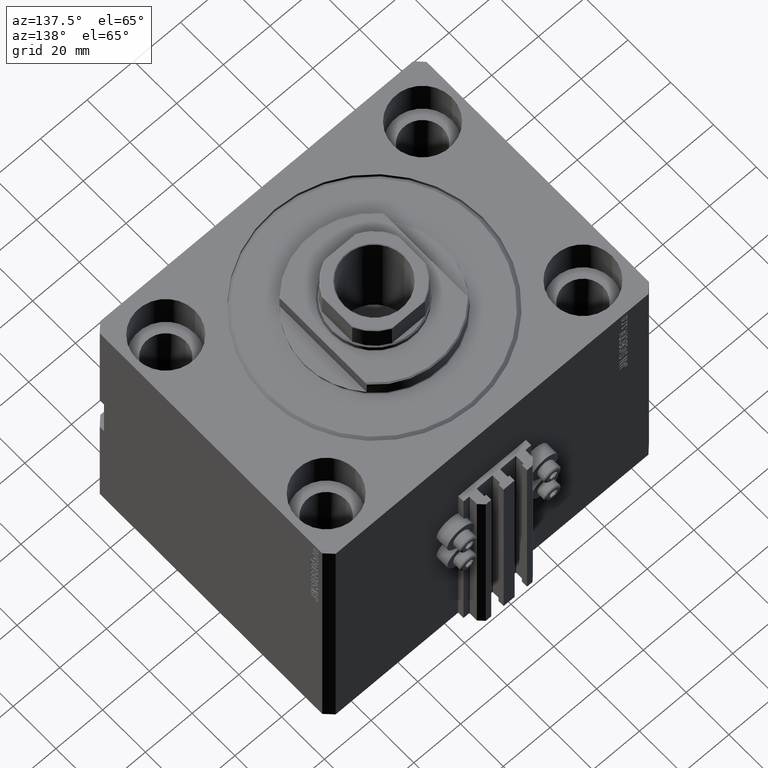
[diagram: clean part render]
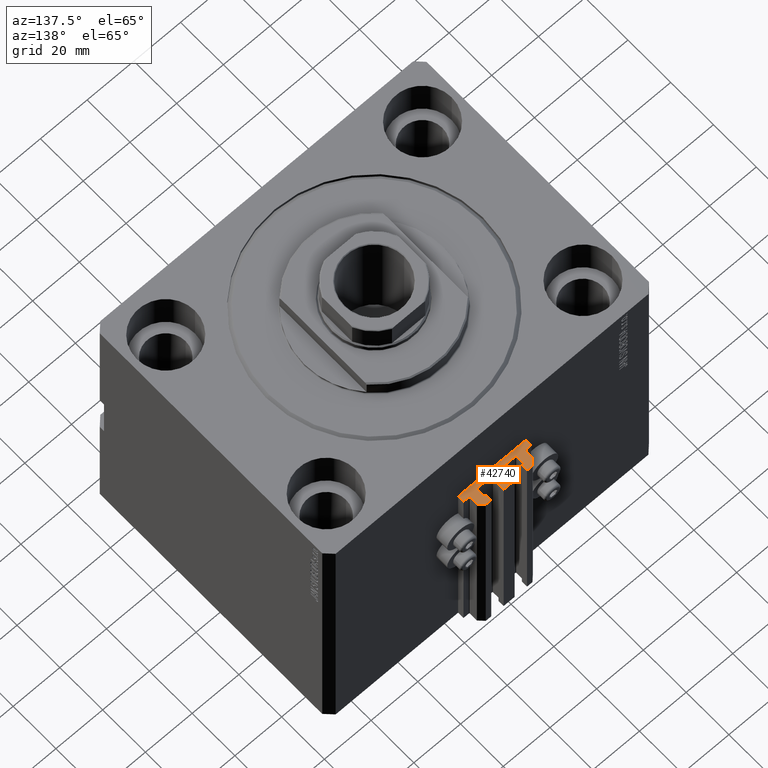
[diagram: same view with one face highlighted and labeled with its STEP entity id]
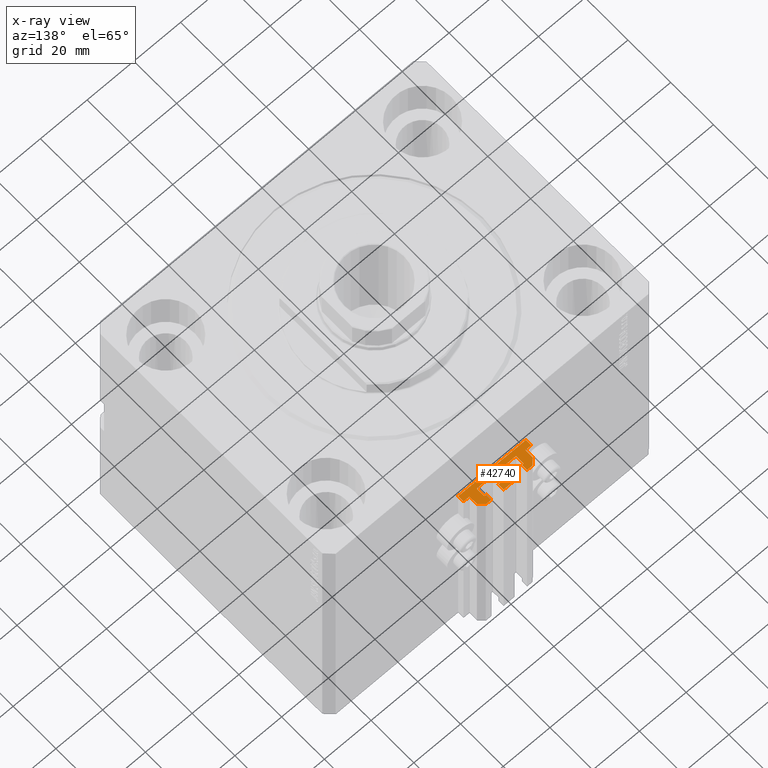
[diagram: x-ray of the same camera — body ghosted, the highlighted face saturated]
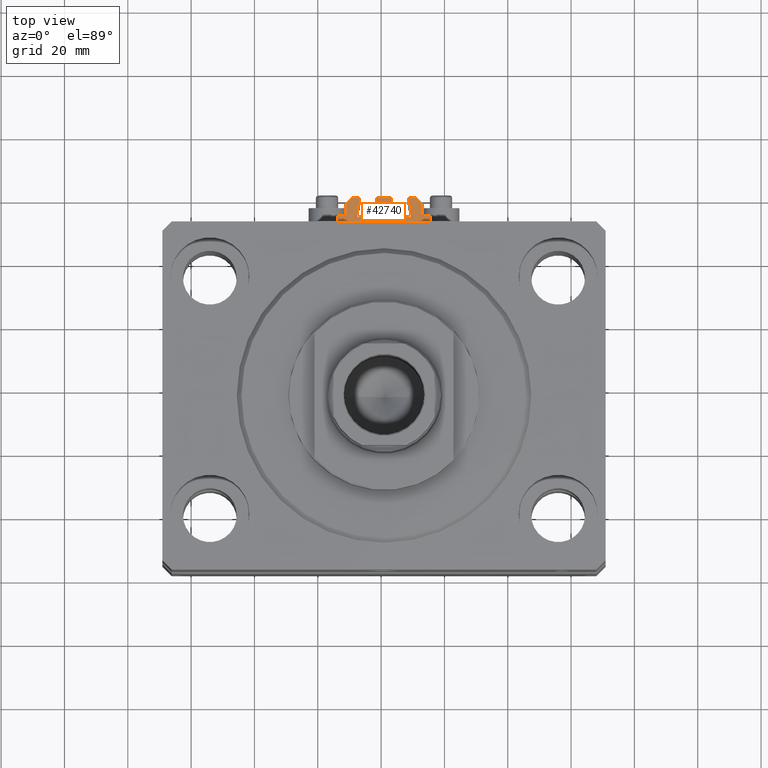
[diagram: same view with one face highlighted and labeled with its STEP entity id]
A machine part, auxiliary view. The second image highlights one B-rep face of the part: STEP entity #42740.
The next image is the same camera in x-ray: the body ghosted, the highlighted face saturated — about 0% of this face is hidden behind the body in this view.
A second angle (top view) of the same face is appended — the face is thin or edge-on in the first view.
In plain terms, the highlighted planar face has unit normal (0, 0, 1).
Its self-contained STEP definition (entity closure, byte-faithful):
#306 = ORIENTED_EDGE ( 'NONE', *, *, #20345, .F. ) ;
#373 = DIRECTION ( 'NONE',  ( 0.000000000000000000, 0.000000000000000000, 1.000000000000000000 ) ) ;
#517 = AXIS2_PLACEMENT_3D ( 'NONE', #47622, #28398, #32096 ) ;
#944 = VERTEX_POINT ( 'NONE', #33586 ) ;
#1222 = DIRECTION ( 'NONE',  ( -1.000000000000000000, 0.000000000000000000, 0.000000000000000000 ) ) ;
#1399 = CIRCLE ( 'NONE', #14016, 0.2000000000000033418 ) ;
#1405 = DIRECTION ( 'NONE',  ( -5.256737805990328981E-16, 1.000000000000000000, 0.000000000000000000 ) ) ;
#1695 = DIRECTION ( 'NONE',  ( 1.000000000000000000, 0.000000000000000000, 0.000000000000000000 ) ) ;
#1826 = DIRECTION ( 'NONE',  ( 1.000000000000000000, 0.000000000000000000, 0.000000000000000000 ) ) ;
#2064 = CARTESIAN_POINT ( 'NONE',  ( -14.50000000000000000, 55.00000000000000711, -33.00000000000000000 ) ) ;
#2286 = EDGE_CURVE ( 'NONE', #36978, #2469, #24624, .T. ) ;
#2335 = ORIENTED_EDGE ( 'NONE', *, *, #17791, .F. ) ;
#2400 = ORIENTED_EDGE ( 'NONE', *, *, #3226, .T. ) ;
#2469 = VERTEX_POINT ( 'NONE', #41845 ) ;
#2581 = VECTOR ( 'NONE', #39987, 1000.000000000000114 ) ;
#2616 = CARTESIAN_POINT ( 'NONE',  ( 12.20000000000000107, 57.50000000000002132, -33.00000000000000000 ) ) ;
#2972 = VERTEX_POINT ( 'NONE', #33118 ) ;
#2979 = EDGE_CURVE ( 'NONE', #33001, #27613, #29167, .T. ) ;
#2999 = VECTOR ( 'NONE', #39810, 1000.000000000000000 ) ;
#3039 = LINE ( 'NONE', #17864, #6951 ) ;
#3226 = EDGE_CURVE ( 'NONE', #4035, #15142, #28339, .T. ) ;
#3258 = ORIENTED_EDGE ( 'NONE', *, *, #8987, .F. ) ;
#3369 = LINE ( 'NONE', #45535, #12912 ) ;
#3424 = LINE ( 'NONE', #11312, #19653 ) ;
#3440 = DIRECTION ( 'NONE',  ( 1.000000000000000000, 0.000000000000000000, 0.000000000000000000 ) ) ;
#3752 = AXIS2_PLACEMENT_3D ( 'NONE', #29257, #21127, #10509 ) ;
#3830 = DIRECTION ( 'NONE',  ( 1.000000000000000000, 1.261617073437673039E-14, 0.000000000000000000 ) ) ;
#4035 = VERTEX_POINT ( 'NONE', #27625 ) ;
#4299 = AXIS2_PLACEMENT_3D ( 'NONE', #44392, #48824, #3440 ) ;
#4387 = LINE ( 'NONE', #4889, #11850 ) ;
#4393 = CARTESIAN_POINT ( 'NONE',  ( -8.199999999999997513, 60.59999999999999432, -33.00000000000000000 ) ) ;
#4540 = EDGE_CURVE ( 'NONE', #22638, #11482, #36297, .T. ) ;
#4566 = DIRECTION ( 'NONE',  ( 1.000000000000000000, 0.000000000000000000, 0.000000000000000000 ) ) ;
#4889 = CARTESIAN_POINT ( 'NONE',  ( 12.00000000000000000, 61.00000000000002842, -33.00000000000000000 ) ) ;
#5125 = CARTESIAN_POINT ( 'NONE',  ( -1.800000000000000933, 57.00000000000000000, -33.00000000000000000 ) ) ;
#5369 = EDGE_CURVE ( 'NONE', #38576, #11869, #44185, .T. ) ;
#5391 = VECTOR ( 'NONE', #16404, 1000.000000000000000 ) ;
#5495 = VERTEX_POINT ( 'NONE', #2616 ) ;
#5541 = VECTOR ( 'NONE', #42901, 1000.000000000000000 ) ;
#5611 = EDGE_CURVE ( 'NONE', #47254, #18711, #29983, .T. ) ;
#6144 = ORIENTED_EDGE ( 'NONE', *, *, #2979, .T. ) ;
#6192 = EDGE_CURVE ( 'NONE', #46855, #19471, #18038, .T. ) ;
#6210 = ORIENTED_EDGE ( 'NONE', *, *, #20598, .F. ) ;
#6501 = LINE ( 'NONE', #21312, #2999 ) ;
#6566 = LINE ( 'NONE', #10997, #40660 ) ;
#6750 = VERTEX_POINT ( 'NONE', #18181 ) ;
#6816 = EDGE_CURVE ( 'NONE', #22638, #41907, #3369, .T. ) ;
#6951 = VECTOR ( 'NONE', #18356, 1000.000000000000000 ) ;
#7035 = CARTESIAN_POINT ( 'NONE',  ( -10.00000000000000000, 63.00000000000000000, -33.00000000000000000 ) ) ;
#7629 = ORIENTED_EDGE ( 'NONE', *, *, #4540, .F. ) ;
#7769 = DIRECTION ( 'NONE',  ( 1.000000000000000000, 0.000000000000000000, 0.000000000000000000 ) ) ;
#8083 = DIRECTION ( 'NONE',  ( 0.000000000000000000, 0.000000000000000000, 1.000000000000000000 ) ) ;
#8461 = EDGE_CURVE ( 'NONE', #26511, #42264, #41471, .T. ) ;
#8648 = CARTESIAN_POINT ( 'NONE',  ( 8.399999999999995026, 60.40000000000003411, -33.00000000000000000 ) ) ;
#8713 = EDGE_CURVE ( 'NONE', #4035, #2469, #26372, .T. ) ;
#8987 = EDGE_CURVE ( 'NONE', #36978, #22254, #11402, .T. ) ;
#8996 = LINE ( 'NONE', #2064, #38208 ) ;
#9067 = CARTESIAN_POINT ( 'NONE',  ( 12.00000000000000178, 57.70000000000003126, -33.00000000000000000 ) ) ;
#9089 = CARTESIAN_POINT ( 'NONE',  ( 1.800000000000000933, 60.60000000000001563, -33.00000000000000000 ) ) ;
#9320 = VERTEX_POINT ( 'NONE', #47914 ) ;
#9813 = ORIENTED_EDGE ( 'NONE', *, *, #46179, .T. ) ;
#9815 = EDGE_CURVE ( 'NONE', #27613, #944, #45014, .T. ) ;
#9831 = EDGE_CURVE ( 'NONE', #944, #31012, #8996, .T. ) ;
#9854 = CARTESIAN_POINT ( 'NONE',  ( -1.600000000000000755, 57.20000000000000284, -33.00000000000000000 ) ) ;
#10061 = DIRECTION ( 'NONE',  ( 0.000000000000000000, 0.000000000000000000, 1.000000000000000000 ) ) ;
#10381 = DIRECTION ( 'NONE',  ( 0.000000000000000000, 0.000000000000000000, 1.000000000000000000 ) ) ;
#10509 = DIRECTION ( 'NONE',  ( 1.000000000000000000, 0.000000000000000000, 0.000000000000000000 ) ) ;
#10542 = CIRCLE ( 'NONE', #47588, 0.2000000000000005107 ) ;
#10543 = VERTEX_POINT ( 'NONE', #42116 ) ;
#10638 = LINE ( 'NONE', #25676, #37736 ) ;
#10997 = CARTESIAN_POINT ( 'NONE',  ( 8.400000000000000355, 60.40000000000003411, -33.00000000000000000 ) ) ;
#11238 = CARTESIAN_POINT ( 'NONE',  ( 1.800000000000000933, 57.00000000000000711, -33.00000000000000000 ) ) ;
#11312 = CARTESIAN_POINT ( 'NONE',  ( 14.49999999999999645, 57.50000000000002132, -33.00000000000000000 ) ) ;
#11402 = CIRCLE ( 'NONE', #24024, 0.1999999999999994282 ) ;
#11462 = ORIENTED_EDGE ( 'NONE', *, *, #12119, .T. ) ;
#11482 = VERTEX_POINT ( 'NONE', #11238 ) ;
#11640 = CARTESIAN_POINT ( 'NONE',  ( -1.600000000000000533, 60.40000000000000568, -33.00000000000000000 ) ) ;
#11737 = DIRECTION ( 'NONE',  ( 0.000000000000000000, 1.000000000000000000, 0.000000000000000000 ) ) ;
#11749 = VERTEX_POINT ( 'NONE', #39578 ) ;
#11850 = VECTOR ( 'NONE', #34739, 1000.000000000000114 ) ;
#11869 = VERTEX_POINT ( 'NONE', #42436 ) ;
#12119 = EDGE_CURVE ( 'NONE', #38576, #43356, #6566, .T. ) ;
#12589 = CARTESIAN_POINT ( 'NONE',  ( -1.800000000000000933, 60.60000000000001563, -33.00000000000000000 ) ) ;
#12627 = VERTEX_POINT ( 'NONE', #18039 ) ;
#12912 = VECTOR ( 'NONE', #11737, 1000.000000000000000 ) ;
#13413 = ORIENTED_EDGE ( 'NONE', *, *, #15601, .T. ) ;
#13473 = CARTESIAN_POINT ( 'NONE',  ( -12.20000000000000107, 57.69999999999998863, -33.00000000000000000 ) ) ;
#13544 = ORIENTED_EDGE ( 'NONE', *, *, #48635, .T. ) ;
#13605 = ORIENTED_EDGE ( 'NONE', *, *, #48070, .T. ) ;
#13612 = VECTOR ( 'NONE', #3830, 1000.000000000000000 ) ;
#13657 = ORIENTED_EDGE ( 'NONE', *, *, #2286, .T. ) ;
#14016 = AXIS2_PLACEMENT_3D ( 'NONE', #44775, #373, #4566 ) ;
#14171 = ORIENTED_EDGE ( 'NONE', *, *, #20264, .F. ) ;
#14639 = CARTESIAN_POINT ( 'NONE',  ( 1.600000000000000533, 60.40000000000000568, -33.00000000000000000 ) ) ;
#15016 = LINE ( 'NONE', #26360, #29877 ) ;
#15050 = EDGE_CURVE ( 'NONE', #31012, #12627, #33550, .T. ) ;
#15142 = VERTEX_POINT ( 'NONE', #23674 ) ;
#15407 = CARTESIAN_POINT ( 'NONE',  ( -14.50000000000000000, 57.49999999999999289, -33.00000000000000000 ) ) ;
#15484 = CIRCLE ( 'NONE', #517, 0.1999999999999953204 ) ;
#15601 = EDGE_CURVE ( 'NONE', #42264, #11869, #29180, .T. ) ;
#15646 = DIRECTION ( 'NONE',  ( 1.000000000000000000, 0.000000000000000000, 0.000000000000000000 ) ) ;
#15853 = AXIS2_PLACEMENT_3D ( 'NONE', #19373, #41800, #7769 ) ;
#15915 = CARTESIAN_POINT ( 'NONE',  ( 2.349999999999999645, 60.60000000000000853, -33.00000000000000000 ) ) ;
#16007 = CARTESIAN_POINT ( 'NONE',  ( 8.199999999999999289, 57.00000000000000000, -33.00000000000000000 ) ) ;
#16239 = VECTOR ( 'NONE', #48107, 1000.000000000000000 ) ;
#16352 = EDGE_CURVE ( 'NONE', #10543, #18711, #20986, .T. ) ;
#16404 = DIRECTION ( 'NONE',  ( 0.000000000000000000, 1.000000000000000000, 0.000000000000000000 ) ) ;
#16407 = EDGE_CURVE ( 'NONE', #46575, #47564, #31995, .T. ) ;
#16449 = EDGE_LOOP ( 'NONE', ( #24089, #37667, #24195, #21032, #14171, #24488, #31433, #47603, #38810, #13413, #42930, #11462, #2335, #47078, #7629, #29774, #306, #22301, #27775, #6210, #31948, #32355, #29456, #13605, #3258, #13657, #21719, #2400, #45724, #9813, #32914, #38299, #24522, #13544, #46462, #6144 ) ) ;
#17112 = CARTESIAN_POINT ( 'NONE',  ( -12.20000000000000107, 57.49999999999998579, -33.00000000000000000 ) ) ;
#17791 = EDGE_CURVE ( 'NONE', #30060, #43356, #15484, .T. ) ;
#17864 = CARTESIAN_POINT ( 'NONE',  ( -7.650000000000009237, 60.59999999999999432, -33.00000000000000000 ) ) ;
#17884 = CARTESIAN_POINT ( 'NONE',  ( -2.350000000000003642, 63.00000000000000000, -33.00000000000000000 ) ) ;
#18038 = LINE ( 'NONE', #40716, #2581 ) ;
#18039 = CARTESIAN_POINT ( 'NONE',  ( 14.49999999999999645, 57.50000000000002132, -33.00000000000000000 ) ) ;
#18181 = CARTESIAN_POINT ( 'NONE',  ( 2.349999999999999645, 63.00000000000000000, -33.00000000000000000 ) ) ;
#18356 = DIRECTION ( 'NONE',  ( 2.891205793294671522E-15, 1.000000000000000000, 0.000000000000000000 ) ) ;
#18423 = CARTESIAN_POINT ( 'NONE',  ( 1.600000000000004752, 57.20000000000000284, -33.00000000000000000 ) ) ;
#18639 = LINE ( 'NONE', #48719, #31785 ) ;
#18711 = VERTEX_POINT ( 'NONE', #12589 ) ;
#19194 = CARTESIAN_POINT ( 'NONE',  ( 8.200000000000001066, 60.40000000000003411, -33.00000000000000000 ) ) ;
#19373 = CARTESIAN_POINT ( 'NONE',  ( 1.800000000000000933, 57.20000000000000284, -33.00000000000000000 ) ) ;
#19471 = VERTEX_POINT ( 'NONE', #26462 ) ;
#19653 = VECTOR ( 'NONE', #37218, 1000.000000000000000 ) ;
#19985 = CARTESIAN_POINT ( 'NONE',  ( -7.650000000000002132, 63.00000000000000000, -33.00000000000000000 ) ) ;
#20264 = EDGE_CURVE ( 'NONE', #46575, #5495, #43924, .T. ) ;
#20345 = EDGE_CURVE ( 'NONE', #23970, #41907, #1399, .T. ) ;
#20473 = EDGE_CURVE ( 'NONE', #27966, #47254, #31209, .T. ) ;
#20505 = VERTEX_POINT ( 'NONE', #38857 ) ;
#20506 = EDGE_CURVE ( 'NONE', #11749, #6750, #20836, .T. ) ;
#20519 = CARTESIAN_POINT ( 'NONE',  ( 11.99999999999999822, 57.70000000000003126, -33.00000000000000000 ) ) ;
#20598 = EDGE_CURVE ( 'NONE', #27966, #6750, #6501, .T. ) ;
#20836 = LINE ( 'NONE', #15915, #5391 ) ;
#20986 = CIRCLE ( 'NONE', #24123, 0.2000000000000031197 ) ;
#21032 = ORIENTED_EDGE ( 'NONE', *, *, #23789, .T. ) ;
#21110 = DIRECTION ( 'NONE',  ( 1.000000000000000000, 0.000000000000000000, 0.000000000000000000 ) ) ;
#21127 = DIRECTION ( 'NONE',  ( 0.000000000000000000, 0.000000000000000000, 1.000000000000000000 ) ) ;
#21312 = CARTESIAN_POINT ( 'NONE',  ( -2.350000000000003642, 63.00000000000000000, -33.00000000000000000 ) ) ;
#21496 = EDGE_CURVE ( 'NONE', #2972, #35850, #3039, .T. ) ;
#21719 = ORIENTED_EDGE ( 'NONE', *, *, #8713, .F. ) ;
#22232 = DIRECTION ( 'NONE',  ( -1.000000000000000000, 0.000000000000000000, 0.000000000000000000 ) ) ;
#22254 = VERTEX_POINT ( 'NONE', #9854 ) ;
#22301 = ORIENTED_EDGE ( 'NONE', *, *, #23819, .T. ) ;
#22495 = CARTESIAN_POINT ( 'NONE',  ( 7.649999999999998579, 63.00000000000002842, -33.00000000000000000 ) ) ;
#22638 = VERTEX_POINT ( 'NONE', #18423 ) ;
#23000 = DIRECTION ( 'NONE',  ( -6.776263578034385456E-17, -1.000000000000000000, 0.000000000000000000 ) ) ;
#23311 = EDGE_CURVE ( 'NONE', #9320, #26511, #10638, .T. ) ;
#23674 = CARTESIAN_POINT ( 'NONE',  ( -8.400000000000000355, 60.39999999999999858, -33.00000000000000000 ) ) ;
#23789 = EDGE_CURVE ( 'NONE', #12627, #5495, #3424, .T. ) ;
#23819 = EDGE_CURVE ( 'NONE', #23970, #11749, #15016, .T. ) ;
#23874 = DIRECTION ( 'NONE',  ( 1.000000000000000000, 0.000000000000000000, 0.000000000000000000 ) ) ;
#23970 = VERTEX_POINT ( 'NONE', #9089 ) ;
#24024 = AXIS2_PLACEMENT_3D ( 'NONE', #36452, #10061, #1695 ) ;
#24056 = VECTOR ( 'NONE', #39561, 1000.000000000000000 ) ;
#24089 = ORIENTED_EDGE ( 'NONE', *, *, #9815, .T. ) ;
#24123 = AXIS2_PLACEMENT_3D ( 'NONE', #26577, #27571, #37927 ) ;
#24195 = ORIENTED_EDGE ( 'NONE', *, *, #15050, .T. ) ;
#24488 = ORIENTED_EDGE ( 'NONE', *, *, #16407, .T. ) ;
#24522 = ORIENTED_EDGE ( 'NONE', *, *, #6192, .T. ) ;
#24624 = LINE ( 'NONE', #43126, #40946 ) ;
#24641 = AXIS2_PLACEMENT_3D ( 'NONE', #19194, #8083, #23874 ) ;
#25466 = CARTESIAN_POINT ( 'NONE',  ( -12.20000000000000107, 57.49999999999998579, -33.00000000000000000 ) ) ;
#25557 = DIRECTION ( 'NONE',  ( -5.421010862427484699E-16, -1.000000000000000000, 0.000000000000000000 ) ) ;
#25676 = CARTESIAN_POINT ( 'NONE',  ( 9.999999999999998224, 63.00000000000002842, -33.00000000000000000 ) ) ;
#25928 = VERTEX_POINT ( 'NONE', #4393 ) ;
#26360 = CARTESIAN_POINT ( 'NONE',  ( 1.800000000000000933, 60.60000000000001563, -33.00000000000000000 ) ) ;
#26372 = CIRCLE ( 'NONE', #4299, 0.1999999999999987899 ) ;
#26462 = CARTESIAN_POINT ( 'NONE',  ( -12.00000000000000000, 60.99999999999998579, -33.00000000000000000 ) ) ;
#26511 = VERTEX_POINT ( 'NONE', #36302 ) ;
#26577 = CARTESIAN_POINT ( 'NONE',  ( -1.800000000000000933, 60.40000000000000568, -33.00000000000000000 ) ) ;
#27571 = DIRECTION ( 'NONE',  ( 0.000000000000000000, 0.000000000000000000, 1.000000000000000000 ) ) ;
#27613 = VERTEX_POINT ( 'NONE', #39482 ) ;
#27625 = CARTESIAN_POINT ( 'NONE',  ( -8.399999999999996803, 57.20000000000000284, -33.00000000000000000 ) ) ;
#27775 = ORIENTED_EDGE ( 'NONE', *, *, #20506, .T. ) ;
#27966 = VERTEX_POINT ( 'NONE', #17884 ) ;
#28339 = LINE ( 'NONE', #35506, #5541 ) ;
#28398 = DIRECTION ( 'NONE',  ( 0.000000000000000000, 0.000000000000000000, 1.000000000000000000 ) ) ;
#28567 = DIRECTION ( 'NONE',  ( -1.000000000000000000, 0.000000000000000000, 0.000000000000000000 ) ) ;
#28782 = CARTESIAN_POINT ( 'NONE',  ( 7.649999999999998579, 60.60000000000002984, -33.00000000000000000 ) ) ;
#29110 = CARTESIAN_POINT ( 'NONE',  ( 14.49999999999999645, 55.00000000000000711, -33.00000000000000000 ) ) ;
#29167 = LINE ( 'NONE', #25466, #44890 ) ;
#29180 = LINE ( 'NONE', #32405, #39854 ) ;
#29257 = CARTESIAN_POINT ( 'NONE',  ( 12.20000000000000107, 57.70000000000003126, -33.00000000000000000 ) ) ;
#29456 = ORIENTED_EDGE ( 'NONE', *, *, #16352, .F. ) ;
#29774 = ORIENTED_EDGE ( 'NONE', *, *, #6816, .T. ) ;
#29877 = VECTOR ( 'NONE', #34498, 1000.000000000000000 ) ;
#29904 = DIRECTION ( 'NONE',  ( 0.000000000000000000, 0.000000000000000000, 1.000000000000000000 ) ) ;
#29975 = DIRECTION ( 'NONE',  ( 0.000000000000000000, -1.000000000000000000, 0.000000000000000000 ) ) ;
#29983 = LINE ( 'NONE', #33688, #13612 ) ;
#30060 = VERTEX_POINT ( 'NONE', #16007 ) ;
#30639 = LINE ( 'NONE', #11640, #46820 ) ;
#30962 = CARTESIAN_POINT ( 'NONE',  ( -2.350000000000003642, 63.00000000000000000, -33.00000000000000000 ) ) ;
#31012 = VERTEX_POINT ( 'NONE', #38770 ) ;
#31196 = CARTESIAN_POINT ( 'NONE',  ( 8.199999999999999289, 57.00000000000000711, -33.00000000000000000 ) ) ;
#31209 = LINE ( 'NONE', #30962, #45554 ) ;
#31433 = ORIENTED_EDGE ( 'NONE', *, *, #37637, .T. ) ;
#31691 = DIRECTION ( 'NONE',  ( -1.000000000000000000, 0.000000000000000000, 0.000000000000000000 ) ) ;
#31785 = VECTOR ( 'NONE', #29975, 1000.000000000000000 ) ;
#31948 = ORIENTED_EDGE ( 'NONE', *, *, #20473, .T. ) ;
#31995 = LINE ( 'NONE', #9067, #38303 ) ;
#32096 = DIRECTION ( 'NONE',  ( 1.000000000000000000, 0.000000000000000000, 0.000000000000000000 ) ) ;
#32355 = ORIENTED_EDGE ( 'NONE', *, *, #5611, .T. ) ;
#32405 = CARTESIAN_POINT ( 'NONE',  ( 7.649999999999998579, 60.60000000000002984, -33.00000000000000000 ) ) ;
#32588 = PLANE ( 'NONE',  #41943 ) ;
#32914 = ORIENTED_EDGE ( 'NONE', *, *, #21496, .T. ) ;
#33001 = VERTEX_POINT ( 'NONE', #17112 ) ;
#33072 = DIRECTION ( 'NONE',  ( 1.000000000000000000, 0.000000000000000000, -0.000000000000000000 ) ) ;
#33118 = CARTESIAN_POINT ( 'NONE',  ( -7.650000000000009237, 60.59999999999999432, -33.00000000000000000 ) ) ;
#33185 = AXIS2_PLACEMENT_3D ( 'NONE', #45195, #29904, #33612 ) ;
#33550 = LINE ( 'NONE', #29110, #16239 ) ;
#33586 = CARTESIAN_POINT ( 'NONE',  ( -14.50000000000000000, 55.00000000000000711, -33.00000000000000000 ) ) ;
#33612 = DIRECTION ( 'NONE',  ( 1.000000000000000000, 0.000000000000000000, 0.000000000000000000 ) ) ;
#33688 = CARTESIAN_POINT ( 'NONE',  ( -2.350000000000003197, 60.60000000000000853, -33.00000000000000000 ) ) ;
#34173 = VECTOR ( 'NONE', #1222, 1000.000000000000000 ) ;
#34407 = LINE ( 'NONE', #38343, #38933 ) ;
#34425 = CARTESIAN_POINT ( 'NONE',  ( 8.400000000000000355, 57.20000000000001705, -33.00000000000000000 ) ) ;
#34498 = DIRECTION ( 'NONE',  ( 1.000000000000000000, -1.261617073437681085E-14, 0.000000000000000000 ) ) ;
#34739 = DIRECTION ( 'NONE',  ( -0.7071067811865474617, 0.7071067811865474617, 0.000000000000000000 ) ) ;
#34775 = CARTESIAN_POINT ( 'NONE',  ( -7.650000000000002132, 63.00000000000000000, -33.00000000000000000 ) ) ;
#35506 = CARTESIAN_POINT ( 'NONE',  ( -8.399999999999996803, 57.20000000000000284, -33.00000000000000000 ) ) ;
#35850 = VERTEX_POINT ( 'NONE', #34775 ) ;
#36086 = DIRECTION ( 'NONE',  ( -1.000000000000000000, 3.016910393003142859E-15, 0.000000000000000000 ) ) ;
#36297 = CIRCLE ( 'NONE', #15853, 0.1999999999999964029 ) ;
#36302 = CARTESIAN_POINT ( 'NONE',  ( 7.649999999999998579, 63.00000000000002842, -33.00000000000000000 ) ) ;
#36340 = DIRECTION ( 'NONE',  ( 1.000000000000000000, -1.261617073437673828E-14, 0.000000000000000000 ) ) ;
#36452 = CARTESIAN_POINT ( 'NONE',  ( -1.800000000000000933, 57.20000000000000284, -33.00000000000000000 ) ) ;
#36627 = EDGE_CURVE ( 'NONE', #30060, #11482, #47205, .T. ) ;
#36978 = VERTEX_POINT ( 'NONE', #5125 ) ;
#37218 = DIRECTION ( 'NONE',  ( -1.000000000000000000, 0.000000000000000000, 0.000000000000000000 ) ) ;
#37537 = DIRECTION ( 'NONE',  ( 0.000000000000000000, -1.000000000000000000, 0.000000000000000000 ) ) ;
#37637 = EDGE_CURVE ( 'NONE', #47564, #9320, #4387, .T. ) ;
#37667 = ORIENTED_EDGE ( 'NONE', *, *, #9831, .T. ) ;
#37736 = VECTOR ( 'NONE', #22232, 1000.000000000000000 ) ;
#37927 = DIRECTION ( 'NONE',  ( 1.000000000000000000, 0.000000000000000000, 0.000000000000000000 ) ) ;
#38208 = VECTOR ( 'NONE', #1826, 1000.000000000000000 ) ;
#38299 = ORIENTED_EDGE ( 'NONE', *, *, #46756, .T. ) ;
#38303 = VECTOR ( 'NONE', #1405, 1000.000000000000000 ) ;
#38343 = CARTESIAN_POINT ( 'NONE',  ( -8.199999999999997513, 60.59999999999999432, -33.00000000000000000 ) ) ;
#38576 = VERTEX_POINT ( 'NONE', #8648 ) ;
#38690 = CIRCLE ( 'NONE', #33185, 0.2000000000000005107 ) ;
#38770 = CARTESIAN_POINT ( 'NONE',  ( 14.49999999999999645, 55.00000000000000711, -33.00000000000000000 ) ) ;
#38810 = ORIENTED_EDGE ( 'NONE', *, *, #8461, .T. ) ;
#38857 = CARTESIAN_POINT ( 'NONE',  ( -12.00000000000000000, 57.69999999999998863, -33.00000000000000000 ) ) ;
#38933 = VECTOR ( 'NONE', #15646, 1000.000000000000000 ) ;
#39482 = CARTESIAN_POINT ( 'NONE',  ( -14.50000000000000000, 57.49999999999999289, -33.00000000000000000 ) ) ;
#39561 = DIRECTION ( 'NONE',  ( 0.000000000000000000, -1.000000000000000000, 0.000000000000000000 ) ) ;
#39578 = CARTESIAN_POINT ( 'NONE',  ( 2.349999999999999645, 60.60000000000000853, -33.00000000000000000 ) ) ;
#39723 = EDGE_CURVE ( 'NONE', #25928, #15142, #38690, .T. ) ;
#39810 = DIRECTION ( 'NONE',  ( 1.000000000000000000, 0.000000000000000000, 0.000000000000000000 ) ) ;
#39854 = VECTOR ( 'NONE', #36340, 1000.000000000000000 ) ;
#39987 = DIRECTION ( 'NONE',  ( -0.7071067811865446862, -0.7071067811865503483, 0.000000000000000000 ) ) ;
#40660 = VECTOR ( 'NONE', #25557, 1000.000000000000000 ) ;
#40716 = CARTESIAN_POINT ( 'NONE',  ( -10.00000000000000000, 63.00000000000000000, -33.00000000000000000 ) ) ;
#40946 = VECTOR ( 'NONE', #28567, 1000.000000000000000 ) ;
#41471 = LINE ( 'NONE', #22495, #43654 ) ;
#41675 = CARTESIAN_POINT ( 'NONE',  ( 12.00000000000000000, 61.00000000000002842, -33.00000000000000000 ) ) ;
#41800 = DIRECTION ( 'NONE',  ( 0.000000000000000000, 0.000000000000000000, 1.000000000000000000 ) ) ;
#41845 = CARTESIAN_POINT ( 'NONE',  ( -8.199999999999997513, 57.00000000000000000, -33.00000000000000000 ) ) ;
#41907 = VERTEX_POINT ( 'NONE', #14639 ) ;
#41943 = AXIS2_PLACEMENT_3D ( 'NONE', #47635, #10381, #33072 ) ;
#42116 = CARTESIAN_POINT ( 'NONE',  ( -1.599999999999997868, 60.40000000000000568, -33.00000000000000000 ) ) ;
#42264 = VERTEX_POINT ( 'NONE', #28782 ) ;
#42307 = DIRECTION ( 'NONE',  ( 1.807003620809179809E-16, -1.000000000000000000, 0.000000000000000000 ) ) ;
#42436 = CARTESIAN_POINT ( 'NONE',  ( 8.200000000000001066, 60.60000000000002274, -33.00000000000000000 ) ) ;
#42526 = VECTOR ( 'NONE', #31691, 1000.000000000000000 ) ;
#42740 = ADVANCED_FACE ( 'NONE', ( #44175 ), #32588, .T. ) ;
#42901 = DIRECTION ( 'NONE',  ( -1.084202172485506406E-15, 1.000000000000000000, 0.000000000000000000 ) ) ;
#42930 = ORIENTED_EDGE ( 'NONE', *, *, #5369, .F. ) ;
#42968 = CARTESIAN_POINT ( 'NONE',  ( -2.350000000000003197, 60.60000000000000853, -33.00000000000000000 ) ) ;
#43126 = CARTESIAN_POINT ( 'NONE',  ( -1.800000000000000933, 57.00000000000000000, -33.00000000000000000 ) ) ;
#43356 = VERTEX_POINT ( 'NONE', #34425 ) ;
#43654 = VECTOR ( 'NONE', #37537, 1000.000000000000000 ) ;
#43924 = CIRCLE ( 'NONE', #3752, 0.2000000000000022593 ) ;
#44175 = FACE_OUTER_BOUND ( 'NONE', #16449, .T. ) ;
#44185 = CIRCLE ( 'NONE', #24641, 0.1999999999999935718 ) ;
#44392 = CARTESIAN_POINT ( 'NONE',  ( -8.199999999999997513, 57.20000000000000284, -33.00000000000000000 ) ) ;
#44775 = CARTESIAN_POINT ( 'NONE',  ( 1.800000000000000933, 60.40000000000000568, -33.00000000000000000 ) ) ;
#44890 = VECTOR ( 'NONE', #36086, 1000.000000000000000 ) ;
#45014 = LINE ( 'NONE', #15407, #24056 ) ;
#45195 = CARTESIAN_POINT ( 'NONE',  ( -8.199999999999997513, 60.39999999999999858, -33.00000000000000000 ) ) ;
#45535 = CARTESIAN_POINT ( 'NONE',  ( 1.600000000000000533, 57.20000000000000284, -33.00000000000000000 ) ) ;
#45554 = VECTOR ( 'NONE', #42307, 1000.000000000000000 ) ;
#45623 = LINE ( 'NONE', #19985, #34173 ) ;
#45724 = ORIENTED_EDGE ( 'NONE', *, *, #39723, .F. ) ;
#45926 = EDGE_CURVE ( 'NONE', #33001, #20505, #10542, .T. ) ;
#46179 = EDGE_CURVE ( 'NONE', #25928, #2972, #34407, .T. ) ;
#46462 = ORIENTED_EDGE ( 'NONE', *, *, #45926, .F. ) ;
#46575 = VERTEX_POINT ( 'NONE', #20519 ) ;
#46756 = EDGE_CURVE ( 'NONE', #35850, #46855, #45623, .T. ) ;
#46820 = VECTOR ( 'NONE', #23000, 1000.000000000000000 ) ;
#46855 = VERTEX_POINT ( 'NONE', #7035 ) ;
#47078 = ORIENTED_EDGE ( 'NONE', *, *, #36627, .T. ) ;
#47205 = LINE ( 'NONE', #31196, #42526 ) ;
#47254 = VERTEX_POINT ( 'NONE', #42968 ) ;
#47500 = DIRECTION ( 'NONE',  ( 0.000000000000000000, 0.000000000000000000, 1.000000000000000000 ) ) ;
#47564 = VERTEX_POINT ( 'NONE', #41675 ) ;
#47588 = AXIS2_PLACEMENT_3D ( 'NONE', #13473, #47500, #21110 ) ;
#47603 = ORIENTED_EDGE ( 'NONE', *, *, #23311, .T. ) ;
#47622 = CARTESIAN_POINT ( 'NONE',  ( 8.199999999999999289, 57.20000000000000284, -33.00000000000000000 ) ) ;
#47635 = CARTESIAN_POINT ( 'NONE',  ( 12.20000000000000107, 57.70000000000003126, -33.00000000000000000 ) ) ;
#47914 = CARTESIAN_POINT ( 'NONE',  ( 9.999999999999998224, 63.00000000000002842, -33.00000000000000000 ) ) ;
#48070 = EDGE_CURVE ( 'NONE', #10543, #22254, #30639, .T. ) ;
#48107 = DIRECTION ( 'NONE',  ( 0.000000000000000000, 1.000000000000000000, 0.000000000000000000 ) ) ;
#48635 = EDGE_CURVE ( 'NONE', #19471, #20505, #18639, .T. ) ;
#48719 = CARTESIAN_POINT ( 'NONE',  ( -12.00000000000000000, 60.99999999999998579, -33.00000000000000000 ) ) ;
#48824 = DIRECTION ( 'NONE',  ( 0.000000000000000000, 0.000000000000000000, 1.000000000000000000 ) ) ;